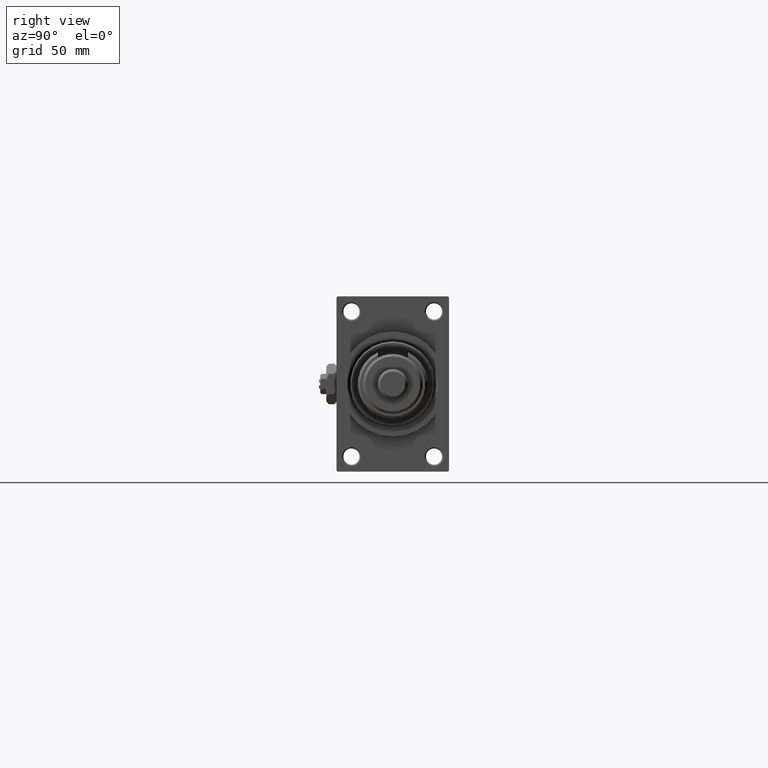
[diagram: clean part render]
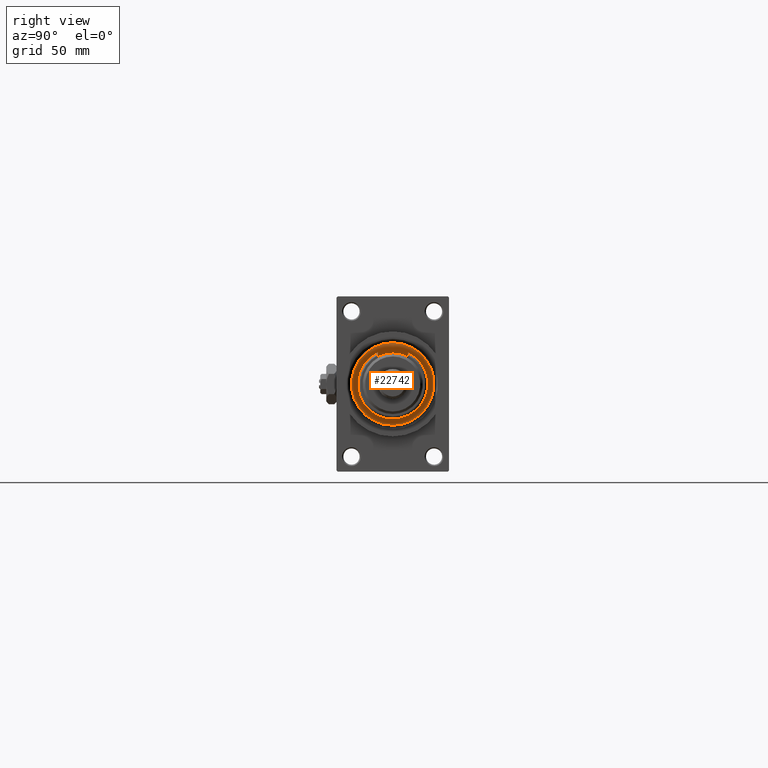
[diagram: same view with one face highlighted and labeled with its STEP entity id]
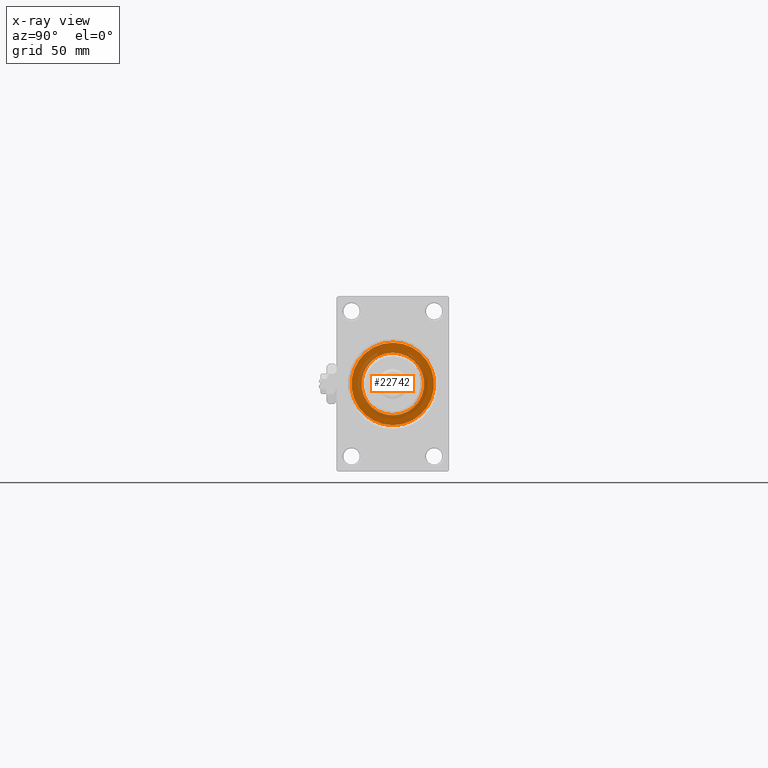
[diagram: x-ray of the same camera — body ghosted, the highlighted face saturated]
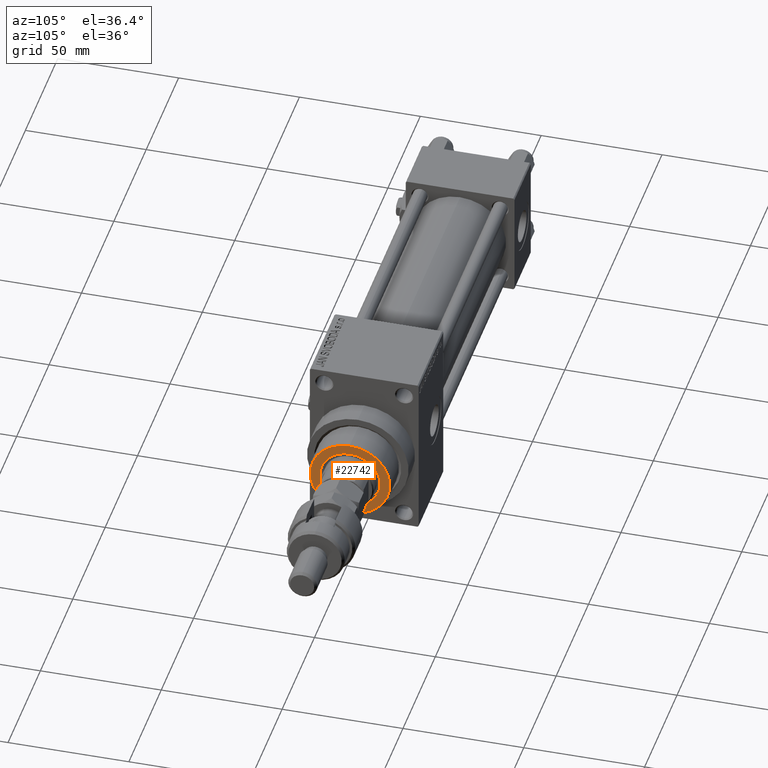
[diagram: same view with one face highlighted and labeled with its STEP entity id]
A machine part, right view. The second image highlights one B-rep face of the part: STEP entity #22742.
The next image is the same camera in x-ray: the body ghosted, the highlighted face saturated — about 29% of this face is hidden behind the body in this view.
A second angle (auxiliary view) of the same face is appended — the face is thin or edge-on in the first view.
In plain terms, the highlighted planar face has unit normal (1, -0, -0).
Its self-contained STEP definition (entity closure, byte-faithful):
#129 = EDGE_LOOP ( 'NONE', ( #21006, #21871 ) ) ;
#283 = VERTEX_POINT ( 'NONE', #44452 ) ;
#1540 = DIRECTION ( 'NONE',  ( 1.000000000000000000, 0.000000000000000000, 0.000000000000000000 ) ) ;
#3082 = FACE_OUTER_BOUND ( 'NONE', #40016, .T. ) ;
#7163 = CARTESIAN_POINT ( 'NONE',  ( 0.000000000000000000, 0.000000000000000000, 55.26000000000000512 ) ) ;
#8688 = EDGE_CURVE ( 'NONE', #283, #20416, #50576, .T. ) ;
#9673 = CARTESIAN_POINT ( 'NONE',  ( 0.000000000000000000, 0.000000000000000000, 55.26000000000000512 ) ) ;
#14413 = EDGE_CURVE ( 'NONE', #20416, #283, #23146, .T. ) ;
#18291 = CARTESIAN_POINT ( 'NONE',  ( 0.000000000000000000, 0.000000000000000000, 55.26000000000000512 ) ) ;
#18303 = AXIS2_PLACEMENT_3D ( 'NONE', #18291, #50079, #37988 ) ;
#18395 = VERTEX_POINT ( 'NONE', #24706 ) ;
#18425 = DIRECTION ( 'NONE',  ( 0.000000000000000000, 0.000000000000000000, 1.000000000000000000 ) ) ;
#18946 = EDGE_CURVE ( 'NONE', #18395, #30378, #29200, .T. ) ;
#20416 = VERTEX_POINT ( 'NONE', #36973 ) ;
#21006 = ORIENTED_EDGE ( 'NONE', *, *, #34238, .F. ) ;
#21871 = ORIENTED_EDGE ( 'NONE', *, *, #18946, .F. ) ;
#22619 = AXIS2_PLACEMENT_3D ( 'NONE', #7163, #48112, #40219 ) ;
#22742 = ADVANCED_FACE ( 'NONE', ( #50873, #3082 ), #30925, .T. ) ;
#23146 = CIRCLE ( 'NONE', #43268, 16.50000000000001421 ) ;
#24706 = CARTESIAN_POINT ( 'NONE',  ( -12.50000000000000000, 1.530808498934191521E-15, 55.26000000000000512 ) ) ;
#25692 = DIRECTION ( 'NONE',  ( 0.000000000000000000, 0.000000000000000000, 1.000000000000000000 ) ) ;
#29200 = CIRCLE ( 'NONE', #42627, 12.50000000000000000 ) ;
#30378 = VERTEX_POINT ( 'NONE', #40465 ) ;
#30925 = PLANE ( 'NONE',  #18303 ) ;
#31502 = ORIENTED_EDGE ( 'NONE', *, *, #8688, .T. ) ;
#34238 = EDGE_CURVE ( 'NONE', #30378, #18395, #34327, .T. ) ;
#34327 = CIRCLE ( 'NONE', #22619, 12.50000000000000000 ) ;
#34968 = DIRECTION ( 'NONE',  ( 1.000000000000000000, 0.000000000000000000, 0.000000000000000000 ) ) ;
#35143 = ORIENTED_EDGE ( 'NONE', *, *, #14413, .T. ) ;
#36973 = CARTESIAN_POINT ( 'NONE',  ( 16.50000000000001421, 2.051283388571817281E-15, 55.26000000000000512 ) ) ;
#37988 = DIRECTION ( 'NONE',  ( 1.000000000000000000, 0.000000000000000000, -0.000000000000000000 ) ) ;
#40016 = EDGE_LOOP ( 'NONE', ( #31502, #35143 ) ) ;
#40219 = DIRECTION ( 'NONE',  ( 1.000000000000000000, 0.000000000000000000, 0.000000000000000000 ) ) ;
#40465 = CARTESIAN_POINT ( 'NONE',  ( 12.50000000000000000, 0.000000000000000000, 55.26000000000000512 ) ) ;
#41050 = CARTESIAN_POINT ( 'NONE',  ( 0.000000000000000000, 0.000000000000000000, 55.26000000000000512 ) ) ;
#42627 = AXIS2_PLACEMENT_3D ( 'NONE', #41050, #45243, #45754 ) ;
#43268 = AXIS2_PLACEMENT_3D ( 'NONE', #50215, #18425, #34968 ) ;
#44452 = CARTESIAN_POINT ( 'NONE',  ( -16.50000000000001421, 0.000000000000000000, 55.26000000000000512 ) ) ;
#45243 = DIRECTION ( 'NONE',  ( 0.000000000000000000, 0.000000000000000000, 1.000000000000000000 ) ) ;
#45754 = DIRECTION ( 'NONE',  ( 1.000000000000000000, 0.000000000000000000, 0.000000000000000000 ) ) ;
#48112 = DIRECTION ( 'NONE',  ( 0.000000000000000000, 0.000000000000000000, 1.000000000000000000 ) ) ;
#48934 = AXIS2_PLACEMENT_3D ( 'NONE', #9673, #25692, #1540 ) ;
#50079 = DIRECTION ( 'NONE',  ( 0.000000000000000000, 0.000000000000000000, 1.000000000000000000 ) ) ;
#50215 = CARTESIAN_POINT ( 'NONE',  ( 0.000000000000000000, 0.000000000000000000, 55.26000000000000512 ) ) ;
#50576 = CIRCLE ( 'NONE', #48934, 16.50000000000001421 ) ;
#50873 = FACE_BOUND ( 'NONE', #129, .T. ) ;